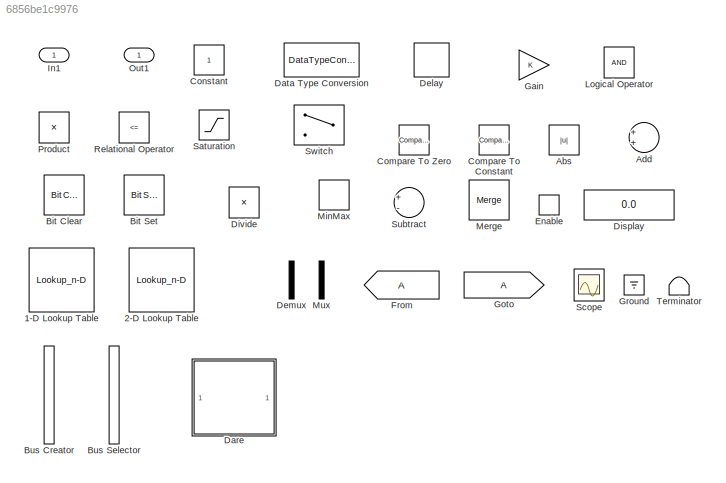
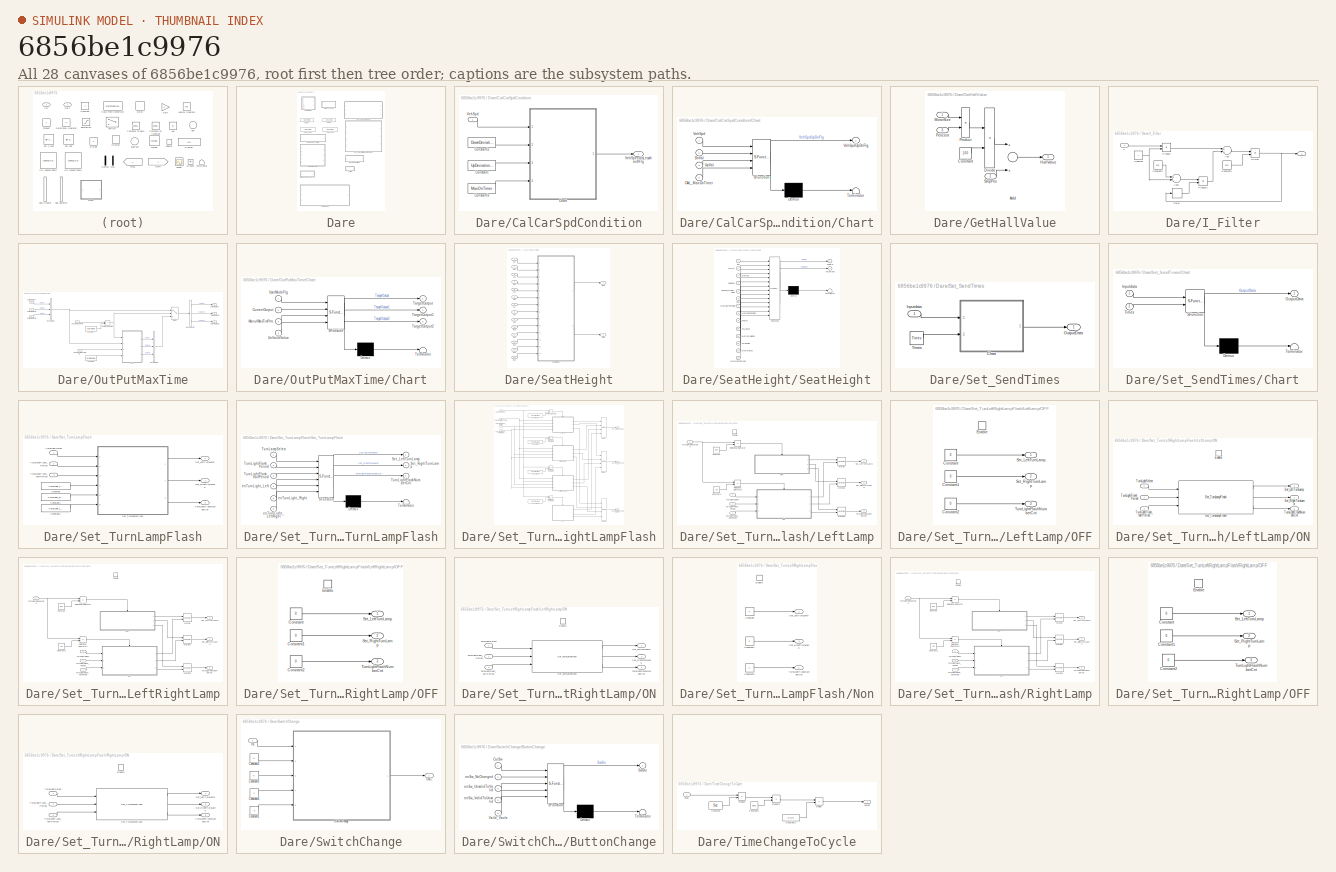
[diagram: thumbnail index - all 28 canvases of the model, root first then tree order]
MODEL slx_6856be1c9976
KIND library
CONFIG AbsTol = auto
CONFIG EnableMultiTasking = off
CONFIG FixedStep = auto
CONFIG MaxStep = auto
CONFIG MinStep = auto
CONFIG RelTol = 1e-3
CONFIG SampleTimeConstraint = Unconstrained
CONFIG Solver = VariableStepAuto
CONFIG SolverName = VariableStepAuto
CONFIG StartTime = 0.0
CONFIG StopTime = 10.0
BLOCK [Lookup_n-D] 1-D Lookup Table
  BreakpointsForDimension1 = [-5:5]
  InternalRulePriority = Speed
  NumberOfTableDimensions = 1
  Ports = [1, 1]
  RndMeth = Simplest
  Table = tanh([-5:5])
BLOCK [Lookup_n-D] 2-D Lookup Table
  BreakpointsForDimension1 = [1:3]
  BreakpointsForDimension2 = [1:3]
  InternalRulePriority = Speed
  Ports = [2, 1]
  RndMeth = Simplest
BLOCK [Abs] Abs
  SaturateOnIntegerOverflow = off
BLOCK [Sum] Add
  InputSameDT = off
  OutDataTypeStr = Inherit: Inherit via internal rule
  Ports = [2, 1]
  SaturateOnIntegerOverflow = off
BLOCK [Reference] Bit Clear  REF=simulink/Logic and Bit
Operations/Bit Clear
  Ports = [1, 1]
  SourceBlock = simulink/Logic and Bit\nOperations/Bit Clear
  SourceProductBaseCode = SL
  SourceProductName = Simulink
  SourceType = Bit Clear
BLOCK [Reference] Bit Set  REF=simulink/Logic and Bit
Operations/Bit Set
  Ports = [1, 1]
  SourceBlock = simulink/Logic and Bit\nOperations/Bit Set
  SourceProductBaseCode = SL
  SourceProductName = Simulink
  SourceType = Bit Set
BLOCK [BusCreator] Bus Creator
  DisplayOption = bar
  InheritFromInputs = on
  Inputs = 2
  Ports = [2, 1]
BLOCK [BusSelector] Bus Selector
  OutputAsBus = off
  OutputSignals = signal1,signal2
  Ports = [1, 2]
BLOCK [Reference] Compare To Constant  REF=simulink/Logic and Bit
Operations/Compare
To Constant
  Ports = [1, 1]
  SourceBlock = simulink/Logic and Bit\nOperations/Compare\nTo Constant
  SourceProductBaseCode = SL
  SourceProductName = Simulink
  SourceType = Compare To Constant
BLOCK [Reference] Compare To Zero  REF=simulink/Logic and Bit
Operations/Compare
To Zero
  Ports = [1, 1]
  SourceBlock = simulink/Logic and Bit\nOperations/Compare\nTo Zero
  SourceProductBaseCode = SL
  SourceProductName = Simulink
  SourceType = Compare To Zero
BLOCK [Constant] Constant
BLOCK [SubSystem] Dare
  Ports = []
  RequestExecContextInheritance = off
BLOCK [SubSystem] Dare/CalCarSpdCondition
  Ports = [1, 1]
  RequestExecContextInheritance = off
BLOCK [Inport] Dare/CalCarSpdCondition/ VehSpd
  IconDisplay = Port number
BLOCK [SubSystem] Dare/CalCarSpdCondition/Chart
  ErrorFcn = Stateflow.Translate.translate
  PermitHierarchicalResolution = ExplicitOnly
  Ports = [4, 1]
  RequestExecContextInheritance = off
  SFBlockType = Chart
  TreatAsAtomicUnit = on
BLOCK [Demux] Dare/CalCarSpdCondition/Chart/ Demux 
  Outputs = 1
  Ports = [1, 1]
BLOCK [S-Function] Dare/CalCarSpdCondition/Chart/ SFunction 
  EnableBusSupport = on
  FunctionName = sf_sfun
  PortCounts = [4 2]
  Ports = [4, 2]
  SFcnIsStateOwnerBlock = off
  SFunctionDeploymentMode = off
  Tag = Stateflow S-Function DareLib 4
BLOCK [Terminator] Dare/CalCarSpdCondition/Chart/ Terminator 
BLOCK [Inport] Dare/CalCarSpdCondition/Chart/CAL_MaxOnTimer
  IconDisplay = Port number
  Port = 4
BLOCK [Inport] Dare/CalCarSpdCondition/Chart/DnVal
  IconDisplay = Port number
  Port = 2
BLOCK [Inport] Dare/CalCarSpdCondition/Chart/UpVal
  IconDisplay = Port number
  Port = 3
BLOCK [Inport] Dare/CalCarSpdCondition/Chart/VehSpd
  IconDisplay = Port number
BLOCK [Outport] Dare/CalCarSpdCondition/Chart/VehSpdUpDnFlg
  IconDisplay = Port number
BLOCK [Constant] Dare/CalCarSpdCondition/Constant
  OutDataTypeStr = uint8
  Value = UpDeviationVal
BLOCK [Constant] Dare/CalCarSpdCondition/Constant2
  OutDataTypeStr = uint8
  Value = DownDeviationVal
BLOCK [Constant] Dare/CalCarSpdCondition/Constant3
  OutDataTypeStr = uint16
  Value = MaxOnTimer
BLOCK [Outport] Dare/CalCarSpdCondition/VehSpeedIsLessthan8Flg
  IconDisplay = Port number
BLOCK [SubSystem] Dare/GetHallValue
  Ports = [3, 1]
  PreDeleteFcn = Stateflow.SLINSF.SimulinkMan.removePreDeleteFcn
  RequestExecContextInheritance = off
  UndoDeleteFcn = Stateflow.SLINSF.SimulinkMan.restorePreDeleteFcn
BLOCK [Sum] Dare/GetHallValue/Add
  AccumDataTypeStr = uint16
  InputSameDT = off
  OutDataTypeStr = Inherit: Inherit via internal rule
  Ports = [2, 1]
  SaturateOnIntegerOverflow = off
BLOCK [Constant] Dare/GetHallValue/Constant
  OutDataTypeStr = uint16
  Value = 100
BLOCK [Product] Dare/GetHallValue/Divide
  InputSameDT = off
  Inputs = */
  OutDataTypeStr = uint16
  Ports = [2, 1]
  RndMeth = Floor
  SaturateOnIntegerOverflow = off
BLOCK [Outport] Dare/GetHallValue/HallValue
  IconDisplay = Port number
  OutDataTypeStr = uint16
BLOCK [Inport] Dare/GetHallValue/MotorSize
  IconDisplay = Port number
  OutDataTypeStr = uint16
BLOCK [Inport] Dare/GetHallValue/Pencent
  IconDisplay = Port number
  OutDataTypeStr = uint8
  Port = 3
BLOCK [Product] Dare/GetHallValue/Product
  InputSameDT = off
  OutDataTypeStr = uint32
  Ports = [2, 1]
  RndMeth = Floor
  SaturateOnIntegerOverflow = off
BLOCK [Inport] Dare/GetHallValue/StopPos
  IconDisplay = Port number
  OutDataTypeStr = uint16
  Port = 2
BLOCK [SubSystem] Dare/I_Filter
  Ports = [1, 1]
  RequestExecContextInheritance = off
BLOCK [Sum] Dare/I_Filter/Add
  InputSameDT = off
  OutDataTypeStr = Inherit: Inherit via internal rule
  Ports = [2, 1]
  SaturateOnIntegerOverflow = off
BLOCK [Sum] Dare/I_Filter/Add1
  InputSameDT = off
  Inputs = +-
  OutDataTypeStr = Inherit: Inherit via internal rule
  Ports = [2, 1]
  SaturateOnIntegerOverflow = off
BLOCK [Constant] Dare/I_Filter/Constant
  OutDataTypeStr = uint8
  Value = f
BLOCK [Constant] Dare/I_Filter/Constant1
  OutDataTypeStr = uint8
  Value = 100
BLOCK [Constant] Dare/I_Filter/Constant2
  OutDataTypeStr = uint8
  Value = 100
BLOCK [Delay] Dare/I_Filter/Delay
  DelayLength = 1
  InitialCondition = 0
  InputPortMap = u0
  Ports = [1, 1]
BLOCK [Product] Dare/I_Filter/Divide
  InputSameDT = off
  Inputs = */
  OutDataTypeStr = Inherit: Inherit via internal rule
  Ports = [2, 1]
  RndMeth = Floor
  SaturateOnIntegerOverflow = off
BLOCK [Product] Dare/I_Filter/Product
  InputSameDT = off
  OutDataTypeStr = Inherit: Inherit via internal rule
  Ports = [2, 1]
  RndMeth = Floor
  SaturateOnIntegerOverflow = off
BLOCK [Product] Dare/I_Filter/Product1
  InputSameDT = off
  OutDataTypeStr = uint32
  Ports = [2, 1]
  RndMeth = Floor
  SaturateOnIntegerOverflow = off
BLOCK [Inport] Dare/I_Filter/x
  IconDisplay = Port number
BLOCK [Outport] Dare/I_Filter/y
  IconDisplay = Port number
BLOCK [SubSystem] Dare/OutPutMaxTime
  AttributesFormatString = %<Description>
  Description = 工厂模式限制输出时间
  Ports = [5, 3]
  RequestExecContextInheritance = off
BLOCK [BusCreator] Dare/OutPutMaxTime/Bus Creator
  DisplayOption = bar
  InheritFromInputs = on
  Inputs = 3
  Ports = [3, 1]
BLOCK [BusCreator] Dare/OutPutMaxTime/Bus Creator1
  DisplayOption = bar
  InheritFromInputs = on
  Inputs = 3
  Ports = [3, 1]
BLOCK [BusSelector] Dare/OutPutMaxTime/Bus Selector
  OutputAsBus = off
  OutputSignals = Output,Output1,Output2
  Ports = [1, 3]
BLOCK [SubSystem] Dare/OutPutMaxTime/Chart
  ErrorFcn = Stateflow.Translate.translate
  PermitHierarchicalResolution = ExplicitOnly
  Ports = [4, 3]
  RequestExecContextInheritance = off
  SFBlockType = Chart
  TreatAsAtomicUnit = on
BLOCK [Demux] Dare/OutPutMaxTime/Chart/ Demux 
  Outputs = 1
  Ports = [1, 1]
BLOCK [S-Function] Dare/OutPutMaxTime/Chart/ SFunction 
  EnableBusSupport = on
  FunctionName = sf_sfun
  PortCounts = [4 4]
  Ports = [4, 4]
  SFcnIsStateOwnerBlock = off
  SFunctionDeploymentMode = off
  Tag = Stateflow S-Function DareLib 2
BLOCK [Terminator] Dare/OutPutMaxTime/Chart/ Terminator 
BLOCK [Inport] Dare/OutPutMaxTime/Chart/CurrentOutput
  IconDisplay = Port number
  Port = 2
BLOCK [Inport] Dare/OutPutMaxTime/Chart/ManufMaxTimPrm
  IconDisplay = Port number
  Port = 3
BLOCK [Outport] Dare/OutPutMaxTime/Chart/TargetOutput
  IconDisplay = Port number
BLOCK [Outport] Dare/OutPutMaxTime/Chart/TargetOutput1
  IconDisplay = Port number
  Port = 2
BLOCK [Outport] Dare/OutPutMaxTime/Chart/TargetOutput2
  IconDisplay = Port number
  Port = 3
BLOCK [Inport] Dare/OutPutMaxTime/Chart/UnVaildValue
  IconDisplay = Port number
  Port = 4
BLOCK [Inport] Dare/OutPutMaxTime/Chart/UserModeFlg
  IconDisplay = Port number
BLOCK [Constant] Dare/OutPutMaxTime/Constant
  OutDataTypeStr = uint8
  Value = UserMode
BLOCK [Constant] Dare/OutPutMaxTime/Constant1
  OutDataTypeStr = uint8
  Value = UnVaildValue
BLOCK [Inport] Dare/OutPutMaxTime/CurrentOutput
  IconDisplay = Port number
  Port = 3
BLOCK [Inport] Dare/OutPutMaxTime/CurrentOutput1
  IconDisplay = Port number
  Port = 4
BLOCK [Inport] Dare/OutPutMaxTime/CurrentOutput2
  IconDisplay = Port number
  Port = 5
BLOCK [RelationalOperator] Dare/OutPutMaxTime/Relational Operator
  InputSameDT = off
  Operator = ==
  OutDataTypeStr = boolean
  Ports = [2, 1]
  RndMeth = Simplest
BLOCK [Switch] Dare/OutPutMaxTime/Switch
  Criteria = u2 ~= 0
  InputSameDT = off
  SaturateOnIntegerOverflow = off
BLOCK [Outport] Dare/OutPutMaxTime/TargetOutput
  IconDisplay = Port number
BLOCK [Outport] Dare/OutPutMaxTime/TargetOutput1
  IconDisplay = Port number
  Port = 2
BLOCK [Outport] Dare/OutPutMaxTime/TargetOutput2
  IconDisplay = Port number
  Port = 3
BLOCK [Inport] Dare/OutPutMaxTime/VehManufMaxTimPrm
  IconDisplay = Port number
  Port = 2
BLOCK [Inport] Dare/OutPutMaxTime/VehOpModePrm
  IconDisplay = Port number
BLOCK [SubSystem] Dare/SeatHeight
  Ports = [14, 2]
  RequestExecContextInheritance = off
BLOCK [Inport] Dare/SeatHeight/In1
  IconDisplay = Port number
BLOCK [Inport] Dare/SeatHeight/In10
  IconDisplay = Port number
  Port = 10
BLOCK [Inport] Dare/SeatHeight/In11
  IconDisplay = Port number
  Port = 11
BLOCK [Inport] Dare/SeatHeight/In12
  IconDisplay = Port number
  Port = 12
BLOCK [Inport] Dare/SeatHeight/In13
  IconDisplay = Port number
  Port = 13
BLOCK [Inport] Dare/SeatHeight/In14
  IconDisplay = Port number
  Port = 14
BLOCK [Inport] Dare/SeatHeight/In2
  IconDisplay = Port number
  Port = 2
BLOCK [Inport] Dare/SeatHeight/In3
  IconDisplay = Port number
  Port = 3
BLOCK [Inport] Dare/SeatHeight/In4
  IconDisplay = Port number
  Port = 4
BLOCK [Inport] Dare/SeatHeight/In5
  IconDisplay = Port number
  Port = 5
BLOCK [Inport] Dare/SeatHeight/In6
  IconDisplay = Port number
  Port = 6
BLOCK [Inport] Dare/SeatHeight/In7
  IconDisplay = Port number
  Port = 7
BLOCK [Inport] Dare/SeatHeight/In8
  IconDisplay = Port number
  Port = 8
BLOCK [Inport] Dare/SeatHeight/In9
  IconDisplay = Port number
  Port = 9
BLOCK [Outport] Dare/SeatHeight/Out1
  IconDisplay = Port number
BLOCK [Outport] Dare/SeatHeight/Out2
  IconDisplay = Port number
  Port = 2
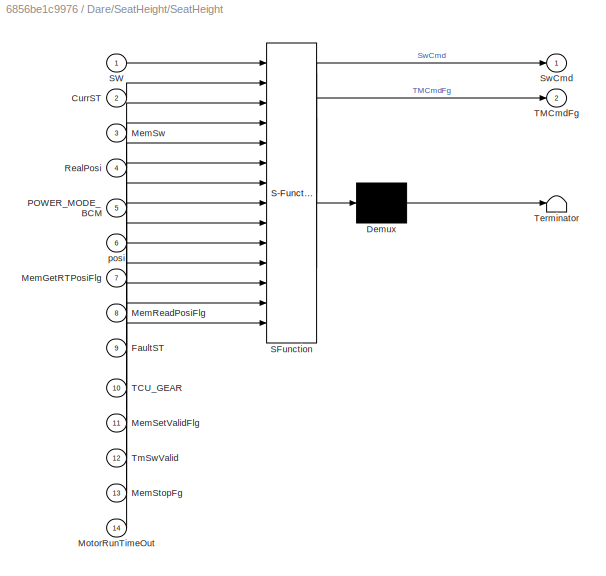
BLOCK [SubSystem] Dare/SeatHeight/SeatHeight
  ErrorFcn = Stateflow.Translate.translate
  PermitHierarchicalResolution = ExplicitOnly
  Ports = [14, 2]
  RequestExecContextInheritance = off
  SFBlockType = Chart
  TreatAsAtomicUnit = on
BLOCK [Demux] Dare/SeatHeight/SeatHeight/ Demux 
  Outputs = 1
  Ports = [1, 1]
BLOCK [S-Function] Dare/SeatHeight/SeatHeight/ SFunction 
  EnableBusSupport = off
  FunctionName = sf_sfun
  PortCounts = [14 3]
  Ports = [14, 3]
  SFcnIsStateOwnerBlock = off
  SFunctionDeploymentMode = off
  Tag = Stateflow S-Function DareLib 14
BLOCK [Terminator] Dare/SeatHeight/SeatHeight/ Terminator 
BLOCK [Inport] Dare/SeatHeight/SeatHeight/CurrST
  IconDisplay = Port number
  Port = 2
BLOCK [Inport] Dare/SeatHeight/SeatHeight/FaultST
  IconDisplay = Port number
  Port = 9
BLOCK [Inport] Dare/SeatHeight/SeatHeight/MemGetRTPosiFlg
  IconDisplay = Port number
  Port = 7
BLOCK [Inport] Dare/SeatHeight/SeatHeight/MemReadPosiFlg
  IconDisplay = Port number
  Port = 8
BLOCK [Inport] Dare/SeatHeight/SeatHeight/MemSetValidFlg
  IconDisplay = Port number
  Port = 11
BLOCK [Inport] Dare/SeatHeight/SeatHeight/MemStopFg
  IconDisplay = Port number
  Port = 13
BLOCK [Inport] Dare/SeatHeight/SeatHeight/MemSw
  IconDisplay = Port number
  Port = 3
BLOCK [Inport] Dare/SeatHeight/SeatHeight/MotorRunTimeOut
  IconDisplay = Port number
  Port = 14
BLOCK [Inport] Dare/SeatHeight/SeatHeight/POWER_MODE_BCM
  IconDisplay = Port number
  Port = 5
BLOCK [Inport] Dare/SeatHeight/SeatHeight/RealPosi
  IconDisplay = Port number
  Port = 4
BLOCK [Inport] Dare/SeatHeight/SeatHeight/SW
  IconDisplay = Port number
BLOCK [Outport] Dare/SeatHeight/SeatHeight/SwCmd
  IconDisplay = Port number
BLOCK [Inport] Dare/SeatHeight/SeatHeight/TCU_GEAR
  IconDisplay = Port number
  Port = 10
BLOCK [Outport] Dare/SeatHeight/SeatHeight/TMCmdFg
  IconDisplay = Port number
  Port = 2
BLOCK [Inport] Dare/SeatHeight/SeatHeight/TmSwValid
  IconDisplay = Port number
  Port = 12
BLOCK [Inport] Dare/SeatHeight/SeatHeight/posi
  IconDisplay = Port number
  Port = 6
BLOCK [SubSystem] Dare/Set_SendTimes
  Ports = [1, 1]
  RequestExecContextInheritance = off
BLOCK [SubSystem] Dare/Set_SendTimes/Chart
  ErrorFcn = Stateflow.Translate.translate
  PermitHierarchicalResolution = ExplicitOnly
  Ports = [2, 1]
  RequestExecContextInheritance = off
  SFBlockType = Chart
  TreatAsAtomicUnit = on
BLOCK [Demux] Dare/Set_SendTimes/Chart/ Demux 
  Outputs = 1
  Ports = [1, 1]
BLOCK [S-Function] Dare/Set_SendTimes/Chart/ SFunction 
  EnableBusSupport = on
  FunctionName = sf_sfun
  PortCounts = [2 2]
  Ports = [2, 2]
  SFcnIsStateOwnerBlock = off
  SFunctionDeploymentMode = off
  Tag = Stateflow S-Function DareLib 5
BLOCK [Terminator] Dare/Set_SendTimes/Chart/ Terminator 
BLOCK [Inport] Dare/Set_SendTimes/Chart/Inputdata
  IconDisplay = Port number
BLOCK [Outport] Dare/Set_SendTimes/Chart/OutputData
  IconDisplay = Port number
BLOCK [Inport] Dare/Set_SendTimes/Chart/Times
  IconDisplay = Port number
  Port = 2
BLOCK [Inport] Dare/Set_SendTimes/Inputdata
  IconDisplay = Port number
BLOCK [Outport] Dare/Set_SendTimes/OutputData
  IconDisplay = Port number
BLOCK [Constant] Dare/Set_SendTimes/Times
  OutDataTypeStr = uint8
  Value = Times
BLOCK [SubSystem] Dare/Set_TurnLampFlash
  Ports = [3, 3]
  RequestExecContextInheritance = off
BLOCK [Constant] Dare/Set_TurnLampFlash/Constant
  OutDataTypeStr = uint8
  Value = TurnLight_Left
BLOCK [Constant] Dare/Set_TurnLampFlash/Constant1
  OutDataTypeStr = uint8
  Value = TurnLight_Right
BLOCK [Constant] Dare/Set_TurnLampFlash/Constant2
  OutDataTypeStr = uint8
  Value = TurnLight_LeftRight
BLOCK [Outport] Dare/Set_TurnLampFlash/Set_LeftTurnLamp
  IconDisplay = Port number
BLOCK [Outport] Dare/Set_TurnLampFlash/Set_RightTurnLamp
  IconDisplay = Port number
  Port = 2
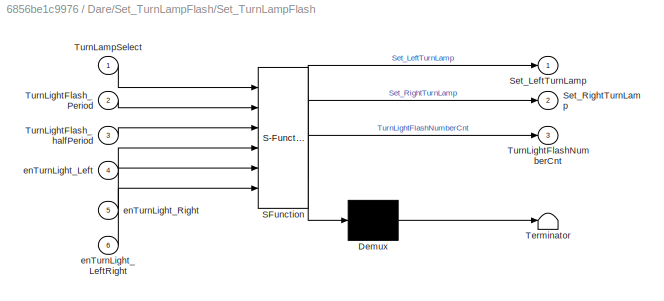
BLOCK [SubSystem] Dare/Set_TurnLampFlash/Set_TurnLampFlash
  ErrorFcn = Stateflow.Translate.translate
  PermitHierarchicalResolution = ExplicitOnly
  Ports = [6, 3]
  RequestExecContextInheritance = off
  SFBlockType = Chart
  TreatAsAtomicUnit = on
BLOCK [Demux] Dare/Set_TurnLampFlash/Set_TurnLampFlash/ Demux 
  Outputs = 1
  Ports = [1, 1]
BLOCK [S-Function] Dare/Set_TurnLampFlash/Set_TurnLampFlash/ SFunction 
  EnableBusSupport = on
  FunctionName = sf_sfun
  Parameters = OFF,ON
  PortCounts = [6 4]
  Ports = [6, 4]
  SFcnIsStateOwnerBlock = off
  SFunctionDeploymentMode = off
  Tag = Stateflow S-Function DareLib 1
BLOCK [Terminator] Dare/Set_TurnLampFlash/Set_TurnLampFlash/ Terminator 
BLOCK [Outport] Dare/Set_TurnLampFlash/Set_TurnLampFlash/Set_LeftTurnLamp
  IconDisplay = Port number
BLOCK [Outport] Dare/Set_TurnLampFlash/Set_TurnLampFlash/Set_RightTurnLamp
  IconDisplay = Port number
  Port = 2
BLOCK [Inport] Dare/Set_TurnLampFlash/Set_TurnLampFlash/TurnLampSelect
  IconDisplay = Port number
BLOCK [Outport] Dare/Set_TurnLampFlash/Set_TurnLampFlash/TurnLightFlashNumberCnt
  IconDisplay = Port number
  Port = 3
BLOCK [Inport] Dare/Set_TurnLampFlash/Set_TurnLampFlash/TurnLightFlash_Period
  IconDisplay = Port number
  Port = 2
BLOCK [Inport] Dare/Set_TurnLampFlash/Set_TurnLampFlash/TurnLightFlash_halfPeriod
  IconDisplay = Port number
  Port = 3
BLOCK [Inport] Dare/Set_TurnLampFlash/Set_TurnLampFlash/enTurnLight_Left
  IconDisplay = Port number
  Port = 4
BLOCK [Inport] Dare/Set_TurnLampFlash/Set_TurnLampFlash/enTurnLight_LeftRight
  IconDisplay = Port number
  Port = 6
BLOCK [Inport] Dare/Set_TurnLampFlash/Set_TurnLampFlash/enTurnLight_Right
  IconDisplay = Port number
  Port = 5
BLOCK [Outport] Dare/Set_TurnLampFlash/TurnLightFlashNumberCnt
  IconDisplay = Port number
  Port = 3
BLOCK [Inport] Dare/Set_TurnLampFlash/TurnLightFlash_Period
  IconDisplay = Port number
  Port = 2
BLOCK [Inport] Dare/Set_TurnLampFlash/TurnLightFlash_halfPeriod
  IconDisplay = Port number
  Port = 3
BLOCK [Inport] Dare/Set_TurnLampFlash/TurnLightSelect
  IconDisplay = Port number
BLOCK [SubSystem] Dare/Set_TurnLeftRightLampFlash
  Ports = [4, 3]
  RequestExecContextInheritance = off
BLOCK [Constant] Dare/Set_TurnLeftRightLampFlash/Constant1
  OutDataTypeStr = uint8
  Value = enTurnLight_Right
BLOCK [Constant] Dare/Set_TurnLeftRightLampFlash/Constant14
  OutDataTypeStr = uint8
  Value = enTurnLight_Left
BLOCK [Constant] Dare/Set_TurnLeftRightLampFlash/Constant2
  OutDataTypeStr = uint8
  Value = enTurnLight_LeftRight
BLOCK [Constant] Dare/Set_TurnLeftRightLampFlash/Constant3
  OutDataTypeStr = uint8
  Value = enTurnLight_Non
BLOCK [SubSystem] Dare/Set_TurnLeftRightLampFlash/LeftLamp
  Ports = [4, 3, 1]
  RequestExecContextInheritance = off
  TreatAsAtomicUnit = on
BLOCK [Constant] Dare/Set_TurnLeftRightLampFlash/LeftLamp/Constant
  OutDataTypeStr = uint8
  Value = OFF
BLOCK [Constant] Dare/Set_TurnLeftRightLampFlash/LeftLamp/Constant1
  OutDataTypeStr = uint8
  Value = ON
BLOCK [EnablePort] Dare/Set_TurnLeftRightLampFlash/LeftLamp/Enable
  Ports = []
BLOCK [Merge] Dare/Set_TurnLeftRightLampFlash/LeftLamp/Merge
  Ports = [2, 1]
BLOCK [Merge] Dare/Set_TurnLeftRightLampFlash/LeftLamp/Merge1
  Ports = [2, 1]
BLOCK [Merge] Dare/Set_TurnLeftRightLampFlash/LeftLamp/Merge2
  Ports = [2, 1]
BLOCK [SubSystem] Dare/Set_TurnLeftRightLampFlash/LeftLamp/OFF
  Ports = [0, 3, 1]
  RequestExecContextInheritance = off
  TreatAsAtomicUnit = on
BLOCK [Constant] Dare/Set_TurnLeftRightLampFlash/LeftLamp/OFF/Constant
  OutDataTypeStr = uint8
  Value = 0
BLOCK [Constant] Dare/Set_TurnLeftRightLampFlash/LeftLamp/OFF/Constant1
  OutDataTypeStr = uint8
  Value = 0
BLOCK [Constant] Dare/Set_TurnLeftRightLampFlash/LeftLamp/OFF/Constant2
  OutDataTypeStr = uint16
  Value = 0
BLOCK [EnablePort] Dare/Set_TurnLeftRightLampFlash/LeftLamp/OFF/Enable
  Ports = []
BLOCK [Outport] Dare/Set_TurnLeftRightLampFlash/LeftLamp/OFF/Set_LeftTurnLamp
  IconDisplay = Port number
BLOCK [Outport] Dare/Set_TurnLeftRightLampFlash/LeftLamp/OFF/Set_RightTurnLamp
  IconDisplay = Port number
  Port = 2
BLOCK [Outport] Dare/Set_TurnLeftRightLampFlash/LeftLamp/OFF/TurnLightFlashNumberCnt
  IconDisplay = Port number
  Port = 3
BLOCK [SubSystem] Dare/Set_TurnLeftRightLampFlash/LeftLamp/ON
  Ports = [3, 3, 1]
  RequestExecContextInheritance = off
  TreatAsAtomicUnit = on
BLOCK [EnablePort] Dare/Set_TurnLeftRightLampFlash/LeftLamp/ON/Enable
  AttributesFormatString = %<StatesWhenEnabling>
  Ports = []
  StatesWhenEnabling = reset
BLOCK [Outport] Dare/Set_TurnLeftRightLampFlash/LeftLamp/ON/Set_LeftTurnLamp
  IconDisplay = Port number
BLOCK [Outport] Dare/Set_TurnLeftRightLampFlash/LeftLamp/ON/Set_RightTurnLamp
  IconDisplay = Port number
  Port = 2
BLOCK [Reference] Dare/Set_TurnLeftRightLampFlash/LeftLamp/ON/Set_TurnLampFlash  REF=$bdroot/Dare/Set_TurnLampFlash
  Ports = [3, 3]
  SourceBlock = $bdroot/Dare/Set_TurnLampFlash
  SourceType = 控制转向灯闪烁及频率设定
BLOCK [Outport] Dare/Set_TurnLeftRightLampFlash/LeftLamp/ON/TurnLightFlashNumberCnt
  IconDisplay = Port number
  Port = 3
BLOCK [Inport] Dare/Set_TurnLeftRightLampFlash/LeftLamp/ON/TurnLightFlash_Period
  IconDisplay = Port number
  Port = 2
BLOCK [Inport] Dare/Set_TurnLeftRightLampFlash/LeftLamp/ON/TurnLightFlash_halfPeriod
  IconDisplay = Port number
  Port = 3
BLOCK [Inport] Dare/Set_TurnLeftRightLampFlash/LeftLamp/ON/TurnLightSelect
  IconDisplay = Port number
BLOCK [RelationalOperator] Dare/Set_TurnLeftRightLampFlash/LeftLamp/Relational Operator
  InputSameDT = off
  Operator = ==
  OutDataTypeStr = boolean
  Ports = [2, 1]
  RndMeth = Simplest
BLOCK [RelationalOperator] Dare/Set_TurnLeftRightLampFlash/LeftLamp/Relational Operator1
  InputSameDT = off
  Operator = ==
  OutDataTypeStr = boolean
  Ports = [2, 1]
  RndMeth = Simplest
BLOCK [Outport] Dare/Set_TurnLeftRightLampFlash/LeftLamp/Set_LeftTurnLamp
  IconDisplay = Port number
BLOCK [Outport] Dare/Set_TurnLeftRightLampFlash/LeftLamp/Set_RightTurnLamp
  IconDisplay = Port number
  Port = 2
BLOCK [Inport] Dare/Set_TurnLeftRightLampFlash/LeftLamp/TurnLightFlashMode
  IconDisplay = Port number
BLOCK [Outport] Dare/Set_TurnLeftRightLampFlash/LeftLamp/TurnLightFlashNumberCnt
  IconDisplay = Port number
  Port = 3
BLOCK [Inport] Dare/Set_TurnLeftRightLampFlash/LeftLamp/TurnLightFlash_Period
  IconDisplay = Port number
  Port = 3
BLOCK [Inport] Dare/Set_TurnLeftRightLampFlash/LeftLamp/TurnLightFlash_halfPeriod
  IconDisplay = Port number
  Port = 4
BLOCK [Inport] Dare/Set_TurnLeftRightLampFlash/LeftLamp/TurnLightSelect
  IconDisplay = Port number
  Port = 2
BLOCK [SubSystem] Dare/Set_TurnLeftRightLampFlash/LeftRightLamp
  Ports = [4, 3, 1]
  RequestExecContextInheritance = off
  TreatAsAtomicUnit = on
BLOCK [Constant] Dare/Set_TurnLeftRightLampFlash/LeftRightLamp/Constant
  Value = OFF
BLOCK [Constant] Dare/Set_TurnLeftRightLampFlash/LeftRightLamp/Constant1
  Value = ON
BLOCK [EnablePort] Dare/Set_TurnLeftRightLampFlash/LeftRightLamp/Enable
  Ports = []
BLOCK [Merge] Dare/Set_TurnLeftRightLampFlash/LeftRightLamp/Merge
  Ports = [2, 1]
BLOCK [Merge] Dare/Set_TurnLeftRightLampFlash/LeftRightLamp/Merge1
  Ports = [2, 1]
BLOCK [Merge] Dare/Set_TurnLeftRightLampFlash/LeftRightLamp/Merge2
  Ports = [2, 1]
BLOCK [SubSystem] Dare/Set_TurnLeftRightLampFlash/LeftRightLamp/OFF
  Ports = [0, 3, 1]
  RequestExecContextInheritance = off
  TreatAsAtomicUnit = on
BLOCK [Constant] Dare/Set_TurnLeftRightLampFlash/LeftRightLamp/OFF/Constant
  OutDataTypeStr = uint8
  Value = 0
BLOCK [Constant] Dare/Set_TurnLeftRightLampFlash/LeftRightLamp/OFF/Constant1
  OutDataTypeStr = uint8
  Value = 0
BLOCK [Constant] Dare/Set_TurnLeftRightLampFlash/LeftRightLamp/OFF/Constant2
  OutDataTypeStr = uint16
  Value = 0
BLOCK [EnablePort] Dare/Set_TurnLeftRightLampFlash/LeftRightLamp/OFF/Enable
  Ports = []
BLOCK [Outport] Dare/Set_TurnLeftRightLampFlash/LeftRightLamp/OFF/Set_LeftTurnLamp
  IconDisplay = Port number
BLOCK [Outport] Dare/Set_TurnLeftRightLampFlash/LeftRightLamp/OFF/Set_RightTurnLamp
  IconDisplay = Port number
  Port = 2
BLOCK [Outport] Dare/Set_TurnLeftRightLampFlash/LeftRightLamp/OFF/TurnLightFlashNumberCnt
  IconDisplay = Port number
  Port = 3
BLOCK [SubSystem] Dare/Set_TurnLeftRightLampFlash/LeftRightLamp/ON
  Ports = [3, 3, 1]
  RequestExecContextInheritance = off
  TreatAsAtomicUnit = on
BLOCK [EnablePort] Dare/Set_TurnLeftRightLampFlash/LeftRightLamp/ON/Enable
  AttributesFormatString = %<StatesWhenEnabling>
  Ports = []
  StatesWhenEnabling = reset
BLOCK [Outport] Dare/Set_TurnLeftRightLampFlash/LeftRightLamp/ON/Set_LeftTurnLamp
  IconDisplay = Port number
BLOCK [Outport] Dare/Set_TurnLeftRightLampFlash/LeftRightLamp/ON/Set_RightTurnLamp
  IconDisplay = Port number
  Port = 2
BLOCK [Reference] Dare/Set_TurnLeftRightLampFlash/LeftRightLamp/ON/Set_TurnLampFlash  REF=$bdroot/Dare/Set_TurnLampFlash
  Ports = [3, 3]
  SourceBlock = $bdroot/Dare/Set_TurnLampFlash
  SourceType = 控制转向灯闪烁及频率设定
BLOCK [Outport] Dare/Set_TurnLeftRightLampFlash/LeftRightLamp/ON/TurnLightFlashNumberCnt
  IconDisplay = Port number
  Port = 3
BLOCK [Inport] Dare/Set_TurnLeftRightLampFlash/LeftRightLamp/ON/TurnLightFlash_Period
  IconDisplay = Port number
  Port = 2
BLOCK [Inport] Dare/Set_TurnLeftRightLampFlash/LeftRightLamp/ON/TurnLightFlash_halfPeriod
  IconDisplay = Port number
  Port = 3
BLOCK [Inport] Dare/Set_TurnLeftRightLampFlash/LeftRightLamp/ON/TurnLightSelect
  IconDisplay = Port number
BLOCK [RelationalOperator] Dare/Set_TurnLeftRightLampFlash/LeftRightLamp/Relational Operator
  InputSameDT = off
  Operator = ==
  OutDataTypeStr = boolean
  Ports = [2, 1]
  RndMeth = Simplest
BLOCK [RelationalOperator] Dare/Set_TurnLeftRightLampFlash/LeftRightLamp/Relational Operator1
  InputSameDT = off
  Operator = ==
  OutDataTypeStr = boolean
  Ports = [2, 1]
  RndMeth = Simplest
BLOCK [Outport] Dare/Set_TurnLeftRightLampFlash/LeftRightLamp/Set_LeftTurnLamp
  IconDisplay = Port number
BLOCK [Outport] Dare/Set_TurnLeftRightLampFlash/LeftRightLamp/Set_RightTurnLamp
  IconDisplay = Port number
  Port = 2
BLOCK [Inport] Dare/Set_TurnLeftRightLampFlash/LeftRightLamp/TurnLightFlashMode
  IconDisplay = Port number
BLOCK [Outport] Dare/Set_TurnLeftRightLampFlash/LeftRightLamp/TurnLightFlashNumberCnt
  IconDisplay = Port number
  Port = 3
BLOCK [Inport] Dare/Set_TurnLeftRightLampFlash/LeftRightLamp/TurnLightFlash_Period
  IconDisplay = Port number
  Port = 3
BLOCK [Inport] Dare/Set_TurnLeftRightLampFlash/LeftRightLamp/TurnLightFlash_halfPeriod
  IconDisplay = Port number
  Port = 4
BLOCK [Inport] Dare/Set_TurnLeftRightLampFlash/LeftRightLamp/TurnLightSelect
  IconDisplay = Port number
  Port = 2
BLOCK [Merge] Dare/Set_TurnLeftRightLampFlash/Merge
  Inputs = 4
  Ports = [4, 1]
BLOCK [Merge] Dare/Set_TurnLeftRightLampFlash/Merge1
  Inputs = 4
  Ports = [4, 1]
BLOCK [Merge] Dare/Set_TurnLeftRightLampFlash/Merge2
  Inputs = 4
  Ports = [4, 1]
BLOCK [SubSystem] Dare/Set_TurnLeftRightLampFlash/Non
  Ports = [0, 3, 1]
  RequestExecContextInheritance = off
  TreatAsAtomicUnit = on
BLOCK [Constant] Dare/Set_TurnLeftRightLampFlash/Non/Constant
  OutDataTypeStr = uint8
  Value = 0
BLOCK [Constant] Dare/Set_TurnLeftRightLampFlash/Non/Constant1
  OutDataTypeStr = uint8
  Value = 0
BLOCK [Constant] Dare/Set_TurnLeftRightLampFlash/Non/Constant2
  OutDataTypeStr = uint16
  Value = 0
BLOCK [EnablePort] Dare/Set_TurnLeftRightLampFlash/Non/Enable
  Ports = []
BLOCK [Outport] Dare/Set_TurnLeftRightLampFlash/Non/Set_LeftTurnLamp
  IconDisplay = Port number
BLOCK [Outport] Dare/Set_TurnLeftRightLampFlash/Non/Set_RightTurnLamp
  IconDisplay = Port number
  Port = 2
BLOCK [Outport] Dare/Set_TurnLeftRightLampFlash/Non/TurnLightFlashNumberCnt
  IconDisplay = Port number
  Port = 3
BLOCK [RelationalOperator] Dare/Set_TurnLeftRightLampFlash/Relational Operator
  InputSameDT = off
  Operator = ==
  OutDataTypeStr = boolean
  Ports = [2, 1]
  RndMeth = Simplest
BLOCK [RelationalOperator] Dare/Set_TurnLeftRightLampFlash/Relational Operator1
  InputSameDT = off
  Operator = ==
  OutDataTypeStr = boolean
  Ports = [2, 1]
  RndMeth = Simplest
BLOCK [RelationalOperator] Dare/Set_TurnLeftRightLampFlash/Relational Operator2
  InputSameDT = off
  Operator = ==
  OutDataTypeStr = boolean
  Ports = [2, 1]
  RndMeth = Simplest
BLOCK [RelationalOperator] Dare/Set_TurnLeftRightLampFlash/Relational Operator3
  InputSameDT = off
  Operator = ==
  OutDataTypeStr = boolean
  Ports = [2, 1]
  RndMeth = Simplest
BLOCK [SubSystem] Dare/Set_TurnLeftRightLampFlash/RightLamp
  Ports = [4, 3, 1]
  RequestExecContextInheritance = off
  TreatAsAtomicUnit = on
BLOCK [Constant] Dare/Set_TurnLeftRightLampFlash/RightLamp/Constant
  Value = OFF
BLOCK [Constant] Dare/Set_TurnLeftRightLampFlash/RightLamp/Constant1
  Value = ON
BLOCK [EnablePort] Dare/Set_TurnLeftRightLampFlash/RightLamp/Enable
  Ports = []
BLOCK [Merge] Dare/Set_TurnLeftRightLampFlash/RightLamp/Merge
  Ports = [2, 1]
BLOCK [Merge] Dare/Set_TurnLeftRightLampFlash/RightLamp/Merge1
  Ports = [2, 1]
BLOCK [Merge] Dare/Set_TurnLeftRightLampFlash/RightLamp/Merge2
  Ports = [2, 1]
BLOCK [SubSystem] Dare/Set_TurnLeftRightLampFlash/RightLamp/OFF
  Ports = [0, 3, 1]
  RequestExecContextInheritance = off
  TreatAsAtomicUnit = on
BLOCK [Constant] Dare/Set_TurnLeftRightLampFlash/RightLamp/OFF/Constant
  OutDataTypeStr = uint8
  Value = 0
BLOCK [Constant] Dare/Set_TurnLeftRightLampFlash/RightLamp/OFF/Constant1
  OutDataTypeStr = uint8
  Value = 0
BLOCK [Constant] Dare/Set_TurnLeftRightLampFlash/RightLamp/OFF/Constant2
  OutDataTypeStr = uint16
  Value = 0
BLOCK [EnablePort] Dare/Set_TurnLeftRightLampFlash/RightLamp/OFF/Enable
  Ports = []
BLOCK [Outport] Dare/Set_TurnLeftRightLampFlash/RightLamp/OFF/Set_LeftTurnLamp
  IconDisplay = Port number
BLOCK [Outport] Dare/Set_TurnLeftRightLampFlash/RightLamp/OFF/Set_RightTurnLamp
  IconDisplay = Port number
  Port = 2
BLOCK [Outport] Dare/Set_TurnLeftRightLampFlash/RightLamp/OFF/TurnLightFlashNumberCnt
  IconDisplay = Port number
  Port = 3
BLOCK [SubSystem] Dare/Set_TurnLeftRightLampFlash/RightLamp/ON
  Ports = [3, 3, 1]
  RequestExecContextInheritance = off
  TreatAsAtomicUnit = on
BLOCK [EnablePort] Dare/Set_TurnLeftRightLampFlash/RightLamp/ON/Enable
  AttributesFormatString = %<StatesWhenEnabling>
  Ports = []
  StatesWhenEnabling = reset
BLOCK [Outport] Dare/Set_TurnLeftRightLampFlash/RightLamp/ON/Set_LeftTurnLamp
  IconDisplay = Port number
BLOCK [Outport] Dare/Set_TurnLeftRightLampFlash/RightLamp/ON/Set_RightTurnLamp
  IconDisplay = Port number
  Port = 2
BLOCK [Reference] Dare/Set_TurnLeftRightLampFlash/RightLamp/ON/Set_TurnLampFlash  REF=$bdroot/Dare/Set_TurnLampFlash
  Ports = [3, 3]
  SourceBlock = $bdroot/Dare/Set_TurnLampFlash
  SourceType = 控制转向灯闪烁及频率设定
BLOCK [Outport] Dare/Set_TurnLeftRightLampFlash/RightLamp/ON/TurnLightFlashNumberCnt
  IconDisplay = Port number
  Port = 3
BLOCK [Inport] Dare/Set_TurnLeftRightLampFlash/RightLamp/ON/TurnLightFlash_Period
  IconDisplay = Port number
  Port = 2
BLOCK [Inport] Dare/Set_TurnLeftRightLampFlash/RightLamp/ON/TurnLightFlash_halfPeriod
  IconDisplay = Port number
  Port = 3
BLOCK [Inport] Dare/Set_TurnLeftRightLampFlash/RightLamp/ON/TurnLightSelect
  IconDisplay = Port number
BLOCK [RelationalOperator] Dare/Set_TurnLeftRightLampFlash/RightLamp/Relational Operator
  InputSameDT = off
  Operator = ==
  OutDataTypeStr = boolean
  Ports = [2, 1]
  RndMeth = Simplest
BLOCK [RelationalOperator] Dare/Set_TurnLeftRightLampFlash/RightLamp/Relational Operator1
  InputSameDT = off
  Operator = ==
  OutDataTypeStr = boolean
  Ports = [2, 1]
  RndMeth = Simplest
BLOCK [Outport] Dare/Set_TurnLeftRightLampFlash/RightLamp/Set_LeftTurnLamp
  IconDisplay = Port number
BLOCK [Outport] Dare/Set_TurnLeftRightLampFlash/RightLamp/Set_RightTurnLamp
  IconDisplay = Port number
  Port = 2
BLOCK [Inport] Dare/Set_TurnLeftRightLampFlash/RightLamp/TurnLightFlashMode
  IconDisplay = Port number
BLOCK [Outport] Dare/Set_TurnLeftRightLampFlash/RightLamp/TurnLightFlashNumberCnt
  IconDisplay = Port number
  Port = 3
BLOCK [Inport] Dare/Set_TurnLeftRightLampFlash/RightLamp/TurnLightFlash_Period
  IconDisplay = Port number
  Port = 3
BLOCK [Inport] Dare/Set_TurnLeftRightLampFlash/RightLamp/TurnLightFlash_halfPeriod
  IconDisplay = Port number
  Port = 4
BLOCK [Inport] Dare/Set_TurnLeftRightLampFlash/RightLamp/TurnLightSelect
  IconDisplay = Port number
  Port = 2
BLOCK [Outport] Dare/Set_TurnLeftRightLampFlash/Set_LeftTurnLamp
  IconDisplay = Port number
BLOCK [Outport] Dare/Set_TurnLeftRightLampFlash/Set_RightTurnLamp
  IconDisplay = Port number
  Port = 2
BLOCK [Inport] Dare/Set_TurnLeftRightLampFlash/TurnLightFlashMode
  IconDisplay = Port number
  Port = 2
BLOCK [Outport] Dare/Set_TurnLeftRightLampFlash/TurnLightFlashNumberCnt
  IconDisplay = Port number
  Port = 3
BLOCK [Inport] Dare/Set_TurnLeftRightLampFlash/TurnLightFlash_Period
  IconDisplay = Port number
  Port = 3
BLOCK [Inport] Dare/Set_TurnLeftRightLampFlash/TurnLightFlash_halfPeriod
  IconDisplay = Port number
  Port = 4
BLOCK [Inport] Dare/Set_TurnLeftRightLampFlash/TurnLightSelect
  IconDisplay = Port number
BLOCK [SubSystem] Dare/SwitchChange
  Ports = [1, 1]
  RequestExecContextInheritance = off
BLOCK [SubSystem] Dare/SwitchChange/ButtonChange
  ErrorFcn = Stateflow.Translate.translate
  PermitHierarchicalResolution = ExplicitOnly
  Ports = [5, 1]
  RequestExecContextInheritance = off
  SFBlockType = Chart
  TreatAsAtomicUnit = on
BLOCK [Demux] Dare/SwitchChange/ButtonChange/ Demux 
  Outputs = 1
  Ports = [1, 1]
BLOCK [S-Function] Dare/SwitchChange/ButtonChange/ SFunction 
  EnableBusSupport = on
  FunctionName = sf_sfun
  PortCounts = [5 2]
  Ports = [5, 2]
  SFcnIsStateOwnerBlock = off
  SFunctionDeploymentMode = off
  Tag = Stateflow S-Function DareLib 3
BLOCK [Terminator] Dare/SwitchChange/ButtonChange/ Terminator 
BLOCK [Inport] Dare/SwitchChange/ButtonChange/CurSw
  IconDisplay = Port number
BLOCK [Outport] Dare/SwitchChange/ButtonChange/SwSts
  IconDisplay = Port number
BLOCK [Inport] Dare/SwitchChange/ButtonChange/Vaild_Vaule
  IconDisplay = Port number
  Port = 5
BLOCK [Inport] Dare/SwitchChange/ButtonChange/enSw_NoChanged
  IconDisplay = Port number
  Port = 2
BLOCK [Inport] Dare/SwitchChange/ButtonChange/enSw_UnvalidToValid
  IconDisplay = Port number
  Port = 3
BLOCK [Inport] Dare/SwitchChange/ButtonChange/enSw_ValidToUnvalid
  IconDisplay = Port number
  Port = 4
BLOCK [Constant] Dare/SwitchChange/Constant1
  OutDataTypeStr = uint8
  Value = d
BLOCK [Constant] Dare/SwitchChange/Constant2
  OutDataTypeStr = uint8
  Value = a
BLOCK [Constant] Dare/SwitchChange/Constant3
  OutDataTypeStr = uint8
  Value = b
BLOCK [Constant] Dare/SwitchChange/Constant4
  OutDataTypeStr = uint8
  Value = c
BLOCK [Inport] Dare/SwitchChange/In1
  IconDisplay = Port number
BLOCK [Outport] Dare/SwitchChange/Out1
  IconDisplay = Port number
BLOCK [SubSystem] Dare/TimeChangeToCycle
  AttributesFormatString = %<Description>
  Description = 时间转成执行周期
  Ports = [1, 1]
  RequestExecContextInheritance = off
BLOCK [Constant] Dare/TimeChangeToCycle/Constant
  OutDataTypeStr = uint16
  Value = Sec
BLOCK [Constant] Dare/TimeChangeToCycle/Constant1
  OutDataTypeStr = uint16
  Value = Msec
BLOCK [Constant] Dare/TimeChangeToCycle/Constant2
  OutDataTypeStr = uint8
  Value = Cycle
BLOCK [Product] Dare/TimeChangeToCycle/Divide
  InputSameDT = off
  Inputs = */
  OutDataTypeStr = uint32
  Ports = [2, 1]
  RndMeth = Floor
  SaturateOnIntegerOverflow = off
BLOCK [Product] Dare/TimeChangeToCycle/Product
  InputSameDT = off
  OutDataTypeStr = Inherit: Inherit via internal rule
  Ports = [2, 1]
  RndMeth = Floor
  SaturateOnIntegerOverflow = off
BLOCK [Product] Dare/TimeChangeToCycle/Product1
  InputSameDT = off
  OutDataTypeStr = uint32
  Ports = [2, 1]
  RndMeth = Floor
  SaturateOnIntegerOverflow = off
BLOCK [Inport] Dare/TimeChangeToCycle/input
  IconDisplay = Port number
BLOCK [Outport] Dare/TimeChangeToCycle/output
  IconDisplay = Port number
BLOCK [S-Function] Dare/getAPI
  AttributesFormatString = %<g_funcname>
  EnableBusSupport = off
  FunctionName = getAPI
  Parameters = g_funcname,g_param,g_type
  Ports = [0, 1]
  SFcnIsStateOwnerBlock = off
  SFunctionDeploymentMode = off
BLOCK [S-Function] Dare/getAPI_type
  AttributesFormatString = %<g_funcname>
  EnableBusSupport = off
  FunctionName = getAPI_type
  Parameters = g_funcname,g_param,g_type,g_enum,g_size
  Ports = [0, 1]
  SFcnIsStateOwnerBlock = off
  SFunctionDeploymentMode = off
BLOCK [S-Function] Dare/setAPI
  AttributesFormatString = %<g_funcname>
  EnableBusSupport = off
  FunctionName = setAPI
  Parameters = g_funcname,g_param,g_type
  Ports = [1]
  SFcnIsStateOwnerBlock = off
  SFunctionDeploymentMode = off
BLOCK [S-Function] Dare/setAPI_type
  AttributesFormatString = %<g_funcname>
  EnableBusSupport = off
  FunctionName = setAPI_type
  Parameters = g_funcname,g_param,g_type,g_enum,g_size
  Ports = [1]
  SFcnIsStateOwnerBlock = off
  SFunctionDeploymentMode = off
BLOCK [DataTypeConversion] Data Type Conversion
  RndMeth = Floor
  SaturateOnIntegerOverflow = off
BLOCK [Delay] Delay
  DelayLength = 1
  InitialCondition = 0
  InputPortMap = u0
  Ports = [1, 1]
BLOCK [Demux] Demux
  DisplayOption = bar
  Outputs = 2
  Ports = [1, 2]
BLOCK [Display] Display
  Decimation = 1
  Ports = [1]
BLOCK [Product] Divide
  InputSameDT = off
  Inputs = */
  OutDataTypeStr = Inherit: Inherit via internal rule
  Ports = [2, 1]
  RndMeth = Floor
  SaturateOnIntegerOverflow = off
BLOCK [EnablePort] Enable
  AttributesFormatString = %<StatesWhenEnabling>
  Ports = []
BLOCK [From] From
BLOCK [Gain] Gain
  OutDataTypeStr = Inherit: Inherit via internal rule
  ParamDataTypeStr = Inherit: Inherit via internal rule
  SaturateOnIntegerOverflow = off
BLOCK [Goto] Goto
BLOCK [Ground] Ground
BLOCK [Inport] In1
  IconDisplay = Port number
BLOCK [Logic] Logical Operator
  AllPortsSameDT = off
  OutDataTypeStr = boolean
  Ports = [2, 1]
BLOCK [Merge] Merge
  Ports = [2, 1]
BLOCK [MinMax] MinMax
  InputSameDT = off
  Ports = [1, 1]
  SaturateOnIntegerOverflow = off
BLOCK [Mux] Mux
  DisplayOption = bar
  Inputs = 2
  Ports = [2, 1]
BLOCK [Outport] Out1
  IconDisplay = Port number
BLOCK [Product] Product
  InputSameDT = off
  OutDataTypeStr = Inherit: Inherit via internal rule
  Ports = [2, 1]
  RndMeth = Floor
  SaturateOnIntegerOverflow = off
BLOCK [RelationalOperator] Relational Operator
  InputSameDT = off
  Operator = <=
  OutDataTypeStr = boolean
  Ports = [2, 1]
  RndMeth = Simplest
BLOCK [Saturate] Saturation
  InputPortMap = u0
  Ports = [1, 1]
BLOCK [Scope] Scope
  Floating = off
  NumInputPorts = 1
  Ports = [1]
  ScopeSpecificationString = Simulink.scopes.TimeScopeBlockCfg('CurrentConfiguration', extmgr.ConfigurationSet(extmgr.Configuration('Core','General UI',true),extmgr.Configuration('Core','Source UI',true),extmgr.Configuration('Sources','WiredSimulink',true),extmgr.Configuration('Visuals','Time Domain',true),extmgr.Configuration('Tools','Plot Navigation',true),extmgr.Configuration('Tools','Measurements',true)),'Version','2018b'...<+1ch>
BLOCK [Sum] Subtract
  InputSameDT = off
  Inputs = +-
  OutDataTypeStr = Inherit: Inherit via internal rule
  Ports = [2, 1]
  SaturateOnIntegerOverflow = off
BLOCK [Switch] Switch
  Criteria = u2 ~= 0
  InputSameDT = off
  SaturateOnIntegerOverflow = off
BLOCK [Terminator] Terminator
LINE Dare/CalCarSpdCondition/ VehSpd:1 -> Dare/CalCarSpdCondition/Chart:1
LINE Dare/CalCarSpdCondition/Chart:1 -> Dare/CalCarSpdCondition/VehSpeedIsLessthan8Flg:1
LINE Dare/CalCarSpdCondition/Constant2:1 -> Dare/CalCarSpdCondition/Chart:2
LINE Dare/CalCarSpdCondition/Constant3:1 -> Dare/CalCarSpdCondition/Chart:4
LINE Dare/CalCarSpdCondition/Constant:1 -> Dare/CalCarSpdCondition/Chart:3
LINE Dare/GetHallValue/Add:1 -> Dare/GetHallValue/HallValue:1
LINE Dare/GetHallValue/Constant:1 -> Dare/GetHallValue/Divide:2
LINE Dare/GetHallValue/Divide:1 -> Dare/GetHallValue/Add:1
LINE Dare/GetHallValue/MotorSize:1 -> Dare/GetHallValue/Product:1
LINE Dare/GetHallValue/Pencent:1 -> Dare/GetHallValue/Product:2
LINE Dare/GetHallValue/Product:1 -> Dare/GetHallValue/Divide:1
LINE Dare/GetHallValue/StopPos:1 -> Dare/GetHallValue/Add:2
LINE Dare/I_Filter/Add1:1 -> Dare/I_Filter/Product1:1
LINE Dare/I_Filter/Add:1 -> Dare/I_Filter/Divide:1
LINE Dare/I_Filter/Constant1:1 -> Dare/I_Filter/Add1:1
LINE Dare/I_Filter/Constant2:1 -> Dare/I_Filter/Divide:2
NET Dare/I_Filter/Constant:1 -> Dare/I_Filter/Add1:2, Dare/I_Filter/Product:2
LINE Dare/I_Filter/Delay:1 -> Dare/I_Filter/Product1:2
NET Dare/I_Filter/Divide:1 -> Dare/I_Filter/Delay:1, Dare/I_Filter/y:1
LINE Dare/I_Filter/Product1:1 -> Dare/I_Filter/Add:2
LINE Dare/I_Filter/Product:1 -> Dare/I_Filter/Add:1
LINE Dare/I_Filter/x:1 -> Dare/I_Filter/Product:1
LINE Dare/OutPutMaxTime/Bus Creator1:1 -> Dare/OutPutMaxTime/Switch:3
NET Dare/OutPutMaxTime/Bus Creator:1 -> Dare/OutPutMaxTime/Chart:2, Dare/OutPutMaxTime/Switch:1
LINE Dare/OutPutMaxTime/Bus Selector:1 -> Dare/OutPutMaxTime/TargetOutput:1
LINE Dare/OutPutMaxTime/Bus Selector:2 -> Dare/OutPutMaxTime/TargetOutput1:1
LINE Dare/OutPutMaxTime/Bus Selector:3 -> Dare/OutPutMaxTime/TargetOutput2:1
LINE Dare/OutPutMaxTime/Chart:1 -> Dare/OutPutMaxTime/Bus Creator1:1
LINE Dare/OutPutMaxTime/Chart:2 -> Dare/OutPutMaxTime/Bus Creator1:2
LINE Dare/OutPutMaxTime/Chart:3 -> Dare/OutPutMaxTime/Bus Creator1:3
LINE Dare/OutPutMaxTime/Constant1:1 -> Dare/OutPutMaxTime/Chart:4
LINE Dare/OutPutMaxTime/Constant:1 -> Dare/OutPutMaxTime/Relational Operator:2
LINE Dare/OutPutMaxTime/CurrentOutput1:1 -> Dare/OutPutMaxTime/Bus Creator:2
LINE Dare/OutPutMaxTime/CurrentOutput2:1 -> Dare/OutPutMaxTime/Bus Creator:3
LINE Dare/OutPutMaxTime/CurrentOutput:1 -> Dare/OutPutMaxTime/Bus Creator:1
NET Dare/OutPutMaxTime/Relational Operator:1 -> Dare/OutPutMaxTime/Chart:1, Dare/OutPutMaxTime/Switch:2
LINE Dare/OutPutMaxTime/Switch:1 -> Dare/OutPutMaxTime/Bus Selector:1
LINE Dare/OutPutMaxTime/VehManufMaxTimPrm:1 -> Dare/OutPutMaxTime/Chart:3
LINE Dare/OutPutMaxTime/VehOpModePrm:1 -> Dare/OutPutMaxTime/Relational Operator:1
LINE Dare/SeatHeight/In10:1 -> Dare/SeatHeight/SeatHeight:10
LINE Dare/SeatHeight/In11:1 -> Dare/SeatHeight/SeatHeight:11
LINE Dare/SeatHeight/In12:1 -> Dare/SeatHeight/SeatHeight:12
LINE Dare/SeatHeight/In13:1 -> Dare/SeatHeight/SeatHeight:13
LINE Dare/SeatHeight/In14:1 -> Dare/SeatHeight/SeatHeight:14
LINE Dare/SeatHeight/In1:1 -> Dare/SeatHeight/SeatHeight:1
LINE Dare/SeatHeight/In2:1 -> Dare/SeatHeight/SeatHeight:2
LINE Dare/SeatHeight/In3:1 -> Dare/SeatHeight/SeatHeight:3
LINE Dare/SeatHeight/In4:1 -> Dare/SeatHeight/SeatHeight:4
LINE Dare/SeatHeight/In5:1 -> Dare/SeatHeight/SeatHeight:5
LINE Dare/SeatHeight/In6:1 -> Dare/SeatHeight/SeatHeight:6
LINE Dare/SeatHeight/In7:1 -> Dare/SeatHeight/SeatHeight:7
LINE Dare/SeatHeight/In8:1 -> Dare/SeatHeight/SeatHeight:8
LINE Dare/SeatHeight/In9:1 -> Dare/SeatHeight/SeatHeight:9
LINE Dare/SeatHeight/SeatHeight:1 -> Dare/SeatHeight/Out1:1
LINE Dare/SeatHeight/SeatHeight:2 -> Dare/SeatHeight/Out2:1
LINE Dare/Set_SendTimes/Chart:1 -> Dare/Set_SendTimes/OutputData:1
LINE Dare/Set_SendTimes/Inputdata:1 -> Dare/Set_SendTimes/Chart:1
LINE Dare/Set_SendTimes/Times:1 -> Dare/Set_SendTimes/Chart:2
LINE Dare/Set_TurnLampFlash/Constant1:1 -> Dare/Set_TurnLampFlash/Set_TurnLampFlash:5
LINE Dare/Set_TurnLampFlash/Constant2:1 -> Dare/Set_TurnLampFlash/Set_TurnLampFlash:6
LINE Dare/Set_TurnLampFlash/Constant:1 -> Dare/Set_TurnLampFlash/Set_TurnLampFlash:4
LINE Dare/Set_TurnLampFlash/Set_TurnLampFlash:1 -> Dare/Set_TurnLampFlash/Set_LeftTurnLamp:1
LINE Dare/Set_TurnLampFlash/Set_TurnLampFlash:2 -> Dare/Set_TurnLampFlash/Set_RightTurnLamp:1
LINE Dare/Set_TurnLampFlash/Set_TurnLampFlash:3 -> Dare/Set_TurnLampFlash/TurnLightFlashNumberCnt:1
LINE Dare/Set_TurnLampFlash/TurnLightFlash_Period:1 -> Dare/Set_TurnLampFlash/Set_TurnLampFlash:2
LINE Dare/Set_TurnLampFlash/TurnLightFlash_halfPeriod:1 -> Dare/Set_TurnLampFlash/Set_TurnLampFlash:3
LINE Dare/Set_TurnLampFlash/TurnLightSelect:1 -> Dare/Set_TurnLampFlash/Set_TurnLampFlash:1
LINE Dare/Set_TurnLeftRightLampFlash/Constant14:1 -> Dare/Set_TurnLeftRightLampFlash/Relational Operator:2
LINE Dare/Set_TurnLeftRightLampFlash/Constant1:1 -> Dare/Set_TurnLeftRightLampFlash/Relational Operator1:2
LINE Dare/Set_TurnLeftRightLampFlash/Constant2:1 -> Dare/Set_TurnLeftRightLampFlash/Relational Operator2:2
LINE Dare/Set_TurnLeftRightLampFlash/Constant3:1 -> Dare/Set_TurnLeftRightLampFlash/Relational Operator3:2
LINE Dare/Set_TurnLeftRightLampFlash/LeftLamp/Constant1:1 -> Dare/Set_TurnLeftRightLampFlash/LeftLamp/Relational Operator1:2
LINE Dare/Set_TurnLeftRightLampFlash/LeftLamp/Constant:1 -> Dare/Set_TurnLeftRightLampFlash/LeftLamp/Relational Operator:2
LINE Dare/Set_TurnLeftRightLampFlash/LeftLamp/Merge1:1 -> Dare/Set_TurnLeftRightLampFlash/LeftLamp/Set_RightTurnLamp:1
LINE Dare/Set_TurnLeftRightLampFlash/LeftLamp/Merge2:1 -> Dare/Set_TurnLeftRightLampFlash/LeftLamp/TurnLightFlashNumberCnt:1
LINE Dare/Set_TurnLeftRightLampFlash/LeftLamp/Merge:1 -> Dare/Set_TurnLeftRightLampFlash/LeftLamp/Set_LeftTurnLamp:1
LINE Dare/Set_TurnLeftRightLampFlash/LeftLamp/OFF/Constant1:1 -> Dare/Set_TurnLeftRightLampFlash/LeftLamp/OFF/Set_RightTurnLamp:1
LINE Dare/Set_TurnLeftRightLampFlash/LeftLamp/OFF/Constant2:1 -> Dare/Set_TurnLeftRightLampFlash/LeftLamp/OFF/TurnLightFlashNumberCnt:1
LINE Dare/Set_TurnLeftRightLampFlash/LeftLamp/OFF/Constant:1 -> Dare/Set_TurnLeftRightLampFlash/LeftLamp/OFF/Set_LeftTurnLamp:1
LINE Dare/Set_TurnLeftRightLampFlash/LeftLamp/OFF:1 -> Dare/Set_TurnLeftRightLampFlash/LeftLamp/Merge:1
LINE Dare/Set_TurnLeftRightLampFlash/LeftLamp/OFF:2 -> Dare/Set_TurnLeftRightLampFlash/LeftLamp/Merge1:1
LINE Dare/Set_TurnLeftRightLampFlash/LeftLamp/OFF:3 -> Dare/Set_TurnLeftRightLampFlash/LeftLamp/Merge2:1
LINE Dare/Set_TurnLeftRightLampFlash/LeftLamp/ON/Set_TurnLampFlash:1 -> Dare/Set_TurnLeftRightLampFlash/LeftLamp/ON/Set_LeftTurnLamp:1
LINE Dare/Set_TurnLeftRightLampFlash/LeftLamp/ON/Set_TurnLampFlash:2 -> Dare/Set_TurnLeftRightLampFlash/LeftLamp/ON/Set_RightTurnLamp:1
LINE Dare/Set_TurnLeftRightLampFlash/LeftLamp/ON/Set_TurnLampFlash:3 -> Dare/Set_TurnLeftRightLampFlash/LeftLamp/ON/TurnLightFlashNumberCnt:1
LINE Dare/Set_TurnLeftRightLampFlash/LeftLamp/ON/TurnLightFlash_Period:1 -> Dare/Set_TurnLeftRightLampFlash/LeftLamp/ON/Set_TurnLampFlash:2
LINE Dare/Set_TurnLeftRightLampFlash/LeftLamp/ON/TurnLightFlash_halfPeriod:1 -> Dare/Set_TurnLeftRightLampFlash/LeftLamp/ON/Set_TurnLampFlash:3
LINE Dare/Set_TurnLeftRightLampFlash/LeftLamp/ON/TurnLightSelect:1 -> Dare/Set_TurnLeftRightLampFlash/LeftLamp/ON/Set_TurnLampFlash:1
LINE Dare/Set_TurnLeftRightLampFlash/LeftLamp/ON:1 -> Dare/Set_TurnLeftRightLampFlash/LeftLamp/Merge:2
LINE Dare/Set_TurnLeftRightLampFlash/LeftLamp/ON:2 -> Dare/Set_TurnLeftRightLampFlash/LeftLamp/Merge1:2
LINE Dare/Set_TurnLeftRightLampFlash/LeftLamp/ON:3 -> Dare/Set_TurnLeftRightLampFlash/LeftLamp/Merge2:2
LINE Dare/Set_TurnLeftRightLampFlash/LeftLamp/Relational Operator1:1 -> Dare/Set_TurnLeftRightLampFlash/LeftLamp/ON:enable
LINE Dare/Set_TurnLeftRightLampFlash/LeftLamp/Relational Operator:1 -> Dare/Set_TurnLeftRightLampFlash/LeftLamp/OFF:enable
NET Dare/Set_TurnLeftRightLampFlash/LeftLamp/TurnLightFlashMode:1 -> Dare/Set_TurnLeftRightLampFlash/LeftLamp/Relational Operator1:1, Dare/Set_TurnLeftRightLampFlash/LeftLamp/Relational Operator:1
LINE Dare/Set_TurnLeftRightLampFlash/LeftLamp/TurnLightFlash_Period:1 -> Dare/Set_TurnLeftRightLampFlash/LeftLamp/ON:2
LINE Dare/Set_TurnLeftRightLampFlash/LeftLamp/TurnLightFlash_halfPeriod:1 -> Dare/Set_TurnLeftRightLampFlash/LeftLamp/ON:3
LINE Dare/Set_TurnLeftRightLampFlash/LeftLamp/TurnLightSelect:1 -> Dare/Set_TurnLeftRightLampFlash/LeftLamp/ON:1
LINE Dare/Set_TurnLeftRightLampFlash/LeftLamp:1 -> Dare/Set_TurnLeftRightLampFlash/Merge:1
LINE Dare/Set_TurnLeftRightLampFlash/LeftLamp:2 -> Dare/Set_TurnLeftRightLampFlash/Merge1:1
LINE Dare/Set_TurnLeftRightLampFlash/LeftLamp:3 -> Dare/Set_TurnLeftRightLampFlash/Merge2:1
LINE Dare/Set_TurnLeftRightLampFlash/LeftRightLamp/Constant1:1 -> Dare/Set_TurnLeftRightLampFlash/LeftRightLamp/Relational Operator1:2
LINE Dare/Set_TurnLeftRightLampFlash/LeftRightLamp/Constant:1 -> Dare/Set_TurnLeftRightLampFlash/LeftRightLamp/Relational Operator:2
LINE Dare/Set_TurnLeftRightLampFlash/LeftRightLamp/Merge1:1 -> Dare/Set_TurnLeftRightLampFlash/LeftRightLamp/Set_RightTurnLamp:1
LINE Dare/Set_TurnLeftRightLampFlash/LeftRightLamp/Merge2:1 -> Dare/Set_TurnLeftRightLampFlash/LeftRightLamp/TurnLightFlashNumberCnt:1
LINE Dare/Set_TurnLeftRightLampFlash/LeftRightLamp/Merge:1 -> Dare/Set_TurnLeftRightLampFlash/LeftRightLamp/Set_LeftTurnLamp:1
LINE Dare/Set_TurnLeftRightLampFlash/LeftRightLamp/OFF/Constant1:1 -> Dare/Set_TurnLeftRightLampFlash/LeftRightLamp/OFF/Set_RightTurnLamp:1
LINE Dare/Set_TurnLeftRightLampFlash/LeftRightLamp/OFF/Constant2:1 -> Dare/Set_TurnLeftRightLampFlash/LeftRightLamp/OFF/TurnLightFlashNumberCnt:1
LINE Dare/Set_TurnLeftRightLampFlash/LeftRightLamp/OFF/Constant:1 -> Dare/Set_TurnLeftRightLampFlash/LeftRightLamp/OFF/Set_LeftTurnLamp:1
LINE Dare/Set_TurnLeftRightLampFlash/LeftRightLamp/OFF:1 -> Dare/Set_TurnLeftRightLampFlash/LeftRightLamp/Merge:1
LINE Dare/Set_TurnLeftRightLampFlash/LeftRightLamp/OFF:2 -> Dare/Set_TurnLeftRightLampFlash/LeftRightLamp/Merge1:1
LINE Dare/Set_TurnLeftRightLampFlash/LeftRightLamp/OFF:3 -> Dare/Set_TurnLeftRightLampFlash/LeftRightLamp/Merge2:1
LINE Dare/Set_TurnLeftRightLampFlash/LeftRightLamp/ON/Set_TurnLampFlash:1 -> Dare/Set_TurnLeftRightLampFlash/LeftRightLamp/ON/Set_LeftTurnLamp:1
LINE Dare/Set_TurnLeftRightLampFlash/LeftRightLamp/ON/Set_TurnLampFlash:2 -> Dare/Set_TurnLeftRightLampFlash/LeftRightLamp/ON/Set_RightTurnLamp:1
LINE Dare/Set_TurnLeftRightLampFlash/LeftRightLamp/ON/Set_TurnLampFlash:3 -> Dare/Set_TurnLeftRightLampFlash/LeftRightLamp/ON/TurnLightFlashNumberCnt:1
LINE Dare/Set_TurnLeftRightLampFlash/LeftRightLamp/ON/TurnLightFlash_Period:1 -> Dare/Set_TurnLeftRightLampFlash/LeftRightLamp/ON/Set_TurnLampFlash:2
LINE Dare/Set_TurnLeftRightLampFlash/LeftRightLamp/ON/TurnLightFlash_halfPeriod:1 -> Dare/Set_TurnLeftRightLampFlash/LeftRightLamp/ON/Set_TurnLampFlash:3
LINE Dare/Set_TurnLeftRightLampFlash/LeftRightLamp/ON/TurnLightSelect:1 -> Dare/Set_TurnLeftRightLampFlash/LeftRightLamp/ON/Set_TurnLampFlash:1
LINE Dare/Set_TurnLeftRightLampFlash/LeftRightLamp/ON:1 -> Dare/Set_TurnLeftRightLampFlash/LeftRightLamp/Merge:2
LINE Dare/Set_TurnLeftRightLampFlash/LeftRightLamp/ON:2 -> Dare/Set_TurnLeftRightLampFlash/LeftRightLamp/Merge1:2
LINE Dare/Set_TurnLeftRightLampFlash/LeftRightLamp/ON:3 -> Dare/Set_TurnLeftRightLampFlash/LeftRightLamp/Merge2:2
LINE Dare/Set_TurnLeftRightLampFlash/LeftRightLamp/Relational Operator1:1 -> Dare/Set_TurnLeftRightLampFlash/LeftRightLamp/ON:enable
LINE Dare/Set_TurnLeftRightLampFlash/LeftRightLamp/Relational Operator:1 -> Dare/Set_TurnLeftRightLampFlash/LeftRightLamp/OFF:enable
NET Dare/Set_TurnLeftRightLampFlash/LeftRightLamp/TurnLightFlashMode:1 -> Dare/Set_TurnLeftRightLampFlash/LeftRightLamp/Relational Operator1:1, Dare/Set_TurnLeftRightLampFlash/LeftRightLamp/Relational Operator:1
LINE Dare/Set_TurnLeftRightLampFlash/LeftRightLamp/TurnLightFlash_Period:1 -> Dare/Set_TurnLeftRightLampFlash/LeftRightLamp/ON:2
LINE Dare/Set_TurnLeftRightLampFlash/LeftRightLamp/TurnLightFlash_halfPeriod:1 -> Dare/Set_TurnLeftRightLampFlash/LeftRightLamp/ON:3
LINE Dare/Set_TurnLeftRightLampFlash/LeftRightLamp/TurnLightSelect:1 -> Dare/Set_TurnLeftRightLampFlash/LeftRightLamp/ON:1
LINE Dare/Set_TurnLeftRightLampFlash/LeftRightLamp:1 -> Dare/Set_TurnLeftRightLampFlash/Merge:3
LINE Dare/Set_TurnLeftRightLampFlash/LeftRightLamp:2 -> Dare/Set_TurnLeftRightLampFlash/Merge1:3
LINE Dare/Set_TurnLeftRightLampFlash/LeftRightLamp:3 -> Dare/Set_TurnLeftRightLampFlash/Merge2:3
LINE Dare/Set_TurnLeftRightLampFlash/Merge1:1 -> Dare/Set_TurnLeftRightLampFlash/Set_RightTurnLamp:1
LINE Dare/Set_TurnLeftRightLampFlash/Merge2:1 -> Dare/Set_TurnLeftRightLampFlash/TurnLightFlashNumberCnt:1
LINE Dare/Set_TurnLeftRightLampFlash/Merge:1 -> Dare/Set_TurnLeftRightLampFlash/Set_LeftTurnLamp:1
LINE Dare/Set_TurnLeftRightLampFlash/Non/Constant1:1 -> Dare/Set_TurnLeftRightLampFlash/Non/Set_RightTurnLamp:1
LINE Dare/Set_TurnLeftRightLampFlash/Non/Constant2:1 -> Dare/Set_TurnLeftRightLampFlash/Non/TurnLightFlashNumberCnt:1
LINE Dare/Set_TurnLeftRightLampFlash/Non/Constant:1 -> Dare/Set_TurnLeftRightLampFlash/Non/Set_LeftTurnLamp:1
LINE Dare/Set_TurnLeftRightLampFlash/Non:1 -> Dare/Set_TurnLeftRightLampFlash/Merge:4
LINE Dare/Set_TurnLeftRightLampFlash/Non:2 -> Dare/Set_TurnLeftRightLampFlash/Merge1:4
LINE Dare/Set_TurnLeftRightLampFlash/Non:3 -> Dare/Set_TurnLeftRightLampFlash/Merge2:4
LINE Dare/Set_TurnLeftRightLampFlash/Relational Operator1:1 -> Dare/Set_TurnLeftRightLampFlash/RightLamp:enable
LINE Dare/Set_TurnLeftRightLampFlash/Relational Operator2:1 -> Dare/Set_TurnLeftRightLampFlash/LeftRightLamp:enable
LINE Dare/Set_TurnLeftRightLampFlash/Relational Operator3:1 -> Dare/Set_TurnLeftRightLampFlash/Non:enable
LINE Dare/Set_TurnLeftRightLampFlash/Relational Operator:1 -> Dare/Set_TurnLeftRightLampFlash/LeftLamp:enable
LINE Dare/Set_TurnLeftRightLampFlash/RightLamp/Constant1:1 -> Dare/Set_TurnLeftRightLampFlash/RightLamp/Relational Operator1:2
LINE Dare/Set_TurnLeftRightLampFlash/RightLamp/Constant:1 -> Dare/Set_TurnLeftRightLampFlash/RightLamp/Relational Operator:2
LINE Dare/Set_TurnLeftRightLampFlash/RightLamp/Merge1:1 -> Dare/Set_TurnLeftRightLampFlash/RightLamp/Set_RightTurnLamp:1
LINE Dare/Set_TurnLeftRightLampFlash/RightLamp/Merge2:1 -> Dare/Set_TurnLeftRightLampFlash/RightLamp/TurnLightFlashNumberCnt:1
LINE Dare/Set_TurnLeftRightLampFlash/RightLamp/Merge:1 -> Dare/Set_TurnLeftRightLampFlash/RightLamp/Set_LeftTurnLamp:1
LINE Dare/Set_TurnLeftRightLampFlash/RightLamp/OFF/Constant1:1 -> Dare/Set_TurnLeftRightLampFlash/RightLamp/OFF/Set_RightTurnLamp:1
LINE Dare/Set_TurnLeftRightLampFlash/RightLamp/OFF/Constant2:1 -> Dare/Set_TurnLeftRightLampFlash/RightLamp/OFF/TurnLightFlashNumberCnt:1
LINE Dare/Set_TurnLeftRightLampFlash/RightLamp/OFF/Constant:1 -> Dare/Set_TurnLeftRightLampFlash/RightLamp/OFF/Set_LeftTurnLamp:1
LINE Dare/Set_TurnLeftRightLampFlash/RightLamp/OFF:1 -> Dare/Set_TurnLeftRightLampFlash/RightLamp/Merge:1
LINE Dare/Set_TurnLeftRightLampFlash/RightLamp/OFF:2 -> Dare/Set_TurnLeftRightLampFlash/RightLamp/Merge1:1
LINE Dare/Set_TurnLeftRightLampFlash/RightLamp/OFF:3 -> Dare/Set_TurnLeftRightLampFlash/RightLamp/Merge2:1
LINE Dare/Set_TurnLeftRightLampFlash/RightLamp/ON/Set_TurnLampFlash:1 -> Dare/Set_TurnLeftRightLampFlash/RightLamp/ON/Set_LeftTurnLamp:1
LINE Dare/Set_TurnLeftRightLampFlash/RightLamp/ON/Set_TurnLampFlash:2 -> Dare/Set_TurnLeftRightLampFlash/RightLamp/ON/Set_RightTurnLamp:1
LINE Dare/Set_TurnLeftRightLampFlash/RightLamp/ON/Set_TurnLampFlash:3 -> Dare/Set_TurnLeftRightLampFlash/RightLamp/ON/TurnLightFlashNumberCnt:1
LINE Dare/Set_TurnLeftRightLampFlash/RightLamp/ON/TurnLightFlash_Period:1 -> Dare/Set_TurnLeftRightLampFlash/RightLamp/ON/Set_TurnLampFlash:2
LINE Dare/Set_TurnLeftRightLampFlash/RightLamp/ON/TurnLightFlash_halfPeriod:1 -> Dare/Set_TurnLeftRightLampFlash/RightLamp/ON/Set_TurnLampFlash:3
LINE Dare/Set_TurnLeftRightLampFlash/RightLamp/ON/TurnLightSelect:1 -> Dare/Set_TurnLeftRightLampFlash/RightLamp/ON/Set_TurnLampFlash:1
LINE Dare/Set_TurnLeftRightLampFlash/RightLamp/ON:1 -> Dare/Set_TurnLeftRightLampFlash/RightLamp/Merge:2
LINE Dare/Set_TurnLeftRightLampFlash/RightLamp/ON:2 -> Dare/Set_TurnLeftRightLampFlash/RightLamp/Merge1:2
LINE Dare/Set_TurnLeftRightLampFlash/RightLamp/ON:3 -> Dare/Set_TurnLeftRightLampFlash/RightLamp/Merge2:2
LINE Dare/Set_TurnLeftRightLampFlash/RightLamp/Relational Operator1:1 -> Dare/Set_TurnLeftRightLampFlash/RightLamp/ON:enable
LINE Dare/Set_TurnLeftRightLampFlash/RightLamp/Relational Operator:1 -> Dare/Set_TurnLeftRightLampFlash/RightLamp/OFF:enable
NET Dare/Set_TurnLeftRightLampFlash/RightLamp/TurnLightFlashMode:1 -> Dare/Set_TurnLeftRightLampFlash/RightLamp/Relational Operator1:1, Dare/Set_TurnLeftRightLampFlash/RightLamp/Relational Operator:1
LINE Dare/Set_TurnLeftRightLampFlash/RightLamp/TurnLightFlash_Period:1 -> Dare/Set_TurnLeftRightLampFlash/RightLamp/ON:2
LINE Dare/Set_TurnLeftRightLampFlash/RightLamp/TurnLightFlash_halfPeriod:1 -> Dare/Set_TurnLeftRightLampFlash/RightLamp/ON:3
LINE Dare/Set_TurnLeftRightLampFlash/RightLamp/TurnLightSelect:1 -> Dare/Set_TurnLeftRightLampFlash/RightLamp/ON:1
LINE Dare/Set_TurnLeftRightLampFlash/RightLamp:1 -> Dare/Set_TurnLeftRightLampFlash/Merge:2
LINE Dare/Set_TurnLeftRightLampFlash/RightLamp:2 -> Dare/Set_TurnLeftRightLampFlash/Merge1:2
LINE Dare/Set_TurnLeftRightLampFlash/RightLamp:3 -> Dare/Set_TurnLeftRightLampFlash/Merge2:2
NET Dare/Set_TurnLeftRightLampFlash/TurnLightFlashMode:1 -> Dare/Set_TurnLeftRightLampFlash/LeftLamp:1, Dare/Set_TurnLeftRightLampFlash/LeftRightLamp:1, Dare/Set_TurnLeftRightLampFlash/RightLamp:1
NET Dare/Set_TurnLeftRightLampFlash/TurnLightFlash_Period:1 -> Dare/Set_TurnLeftRightLampFlash/LeftLamp:3, Dare/Set_TurnLeftRightLampFlash/LeftRightLamp:3, Dare/Set_TurnLeftRightLampFlash/RightLamp:3
NET Dare/Set_TurnLeftRightLampFlash/TurnLightFlash_halfPeriod:1 -> Dare/Set_TurnLeftRightLampFlash/LeftLamp:4, Dare/Set_TurnLeftRightLampFlash/LeftRightLamp:4, Dare/Set_TurnLeftRightLampFlash/RightLamp:4
NET Dare/Set_TurnLeftRightLampFlash/TurnLightSelect:1 -> Dare/Set_TurnLeftRightLampFlash/LeftLamp:2, Dare/Set_TurnLeftRightLampFlash/LeftRightLamp:2, Dare/Set_TurnLeftRightLampFlash/Relational Operator1:1, Dare/Set_TurnLeftRightLampFlash/Relational Operator2:1, Dare/Set_TurnLeftRightLampFlash/Relational Operator3:1, Dare/Set_TurnLeftRightLampFlash/Relational Operator:1, Dare/Set_TurnLeftRightLampFlash/RightLamp:2
LINE Dare/SwitchChange/ButtonChange:1 -> Dare/SwitchChange/Out1:1
LINE Dare/SwitchChange/Constant1:1 -> Dare/SwitchChange/ButtonChange:5
LINE Dare/SwitchChange/Constant2:1 -> Dare/SwitchChange/ButtonChange:2
LINE Dare/SwitchChange/Constant3:1 -> Dare/SwitchChange/ButtonChange:3
LINE Dare/SwitchChange/Constant4:1 -> Dare/SwitchChange/ButtonChange:4
LINE Dare/SwitchChange/In1:1 -> Dare/SwitchChange/ButtonChange:1
LINE Dare/TimeChangeToCycle/Constant1:1 -> Dare/TimeChangeToCycle/Product1:2
LINE Dare/TimeChangeToCycle/Constant2:1 -> Dare/TimeChangeToCycle/Divide:2
LINE Dare/TimeChangeToCycle/Constant:1 -> Dare/TimeChangeToCycle/Product:2
LINE Dare/TimeChangeToCycle/Divide:1 -> Dare/TimeChangeToCycle/output:1
LINE Dare/TimeChangeToCycle/Product1:1 -> Dare/TimeChangeToCycle/Divide:1
LINE Dare/TimeChangeToCycle/Product:1 -> Dare/TimeChangeToCycle/Product1:1
LINE Dare/TimeChangeToCycle/input:1 -> Dare/TimeChangeToCycle/Product:1
note: NET lines group one-source signal fan-out (src -> all destinations, sorted); 1:1 wires keep LINE
CHART Dare/Set_TurnLampFlash/Set_TurnLampFlash states=1 transitions=28
  STATE_LABEL '[Left,Right]=Set_TurnLamp(OutPutReq,LampSelect)'
  STATE_LABEL '[LampSelect == enTurnLight_Left]'
  STATE_LABEL '{Left = OutPutReq;}'
  STATE_LABEL '[LampSelect == enTurnLight_Right]'
  STATE_LABEL '{Right = OutPutReq;}'
  STATE_LABEL '[LampSelect == enTurnLight_LeftRight]'
  STATE_LABEL '{Left = OutPutReq;\nRight = OutPutReq;}'
  STATE_LABEL '{Left = 0;\nRight = 0;}'
CHART Dare/OutPutMaxTime/Chart states=0 transitions=28
CHART Dare/SwitchChange/ButtonChange states=2 transitions=10
  STATE_LABEL 'NoChange\nen:\nSwSts = enSw_NoChanged;'
  STATE_LABEL 'YesChange\n'
  STATE_LABEL '[PreSw == Vaild_Vaule]'
  STATE_LABEL '{SwSts = enSw_UnvalidToValid;}'
  STATE_LABEL '{SwSts = enSw_ValidToUnvalid;}'
  STATE_LABEL '{PreSw = CurSw;}'
CHART Dare/CalCarSpdCondition/Chart states=1 transitions=31
  STATE_LABEL 'UpDn\nen:\nVehSpdUpDnFlg = 0;\nUpFlg = 0;\nDnFlg = 0;\nUpCnt = 0;\nDnCnt = 0;\n\n'
  STATE_LABEL '{\nVehSpdUpDnFlg = 0;\n}'
  STATE_LABEL '[VehSpd >= UpVal]'
  STATE_LABEL '{UpFlg = 1;}'
  STATE_LABEL '[VehSpd <= DnVal]'
  STATE_LABEL '{DnFlg = 1;}'
  STATE_LABEL '[VehSpd < DnVal && UpFlg == 1 && DnFlg == 1]'
  STATE_LABEL '{UpCnt = 0;}'
  STATE_LABEL '[DnCnt < CAL_MaxOnTimer]'
  STATE_LABEL '{\nVehSpdUpDnFlg = 1;\nUpFlg = 0;\nDnFlg = 0;\n}'
  STATE_LABEL '{DnCnt++;}'
  STATE_LABEL '[VehSpd > UpVal && UpFlg == 1 && DnFlg == 1]'
  STATE_LABEL '{DnCnt = 0;}'
  STATE_LABEL '[UpCnt < CAL_MaxOnTimer]'
  STATE_LABEL '{\nVehSpdUpDnFlg = 2;\nUpFlg = 0;\nDnFlg = 0;\n}'
  STATE_LABEL '{UpCnt++;}'
CHART Dare/Set_SendTimes/Chart states=2 transitions=4
  STATE_LABEL 'Clear_OutputData\nen:\nCnt = 0;\nOutputData = 0;'
  STATE_LABEL 'OutPut_Times\nen:\nOutputData = Inputdata;\nCnt++;\ndu:\nCnt++;'
CHART Dare/SeatHeight/SeatHeight states=15 transitions=186
  STATE_LABEL 'MotorSw\nen:\nMemSwCmd=0,SetPosi=0,SwCmd2=0,TmSwCmd=0,MotorRunTimeCnt=0,TMRunTimeCnt=0,MemToSWCnt=0,MemToMemCnt=0,TmtoTmCnt=0,SwDiffCnt=0,PreSWST=0,PreMEMST=0,PreTMST=0,SwDelay=10,MemSwFlg=0,TmMemSwCmd=0,TmFirstFlg=0,PreTmSetPosi=0;\ndu:'
  STATE_LABEL '%当读取记忆档位位置成功后，并且按下记忆调用开关'
  STATE_LABEL '%TM模式下多次设置不同位置时，清TmFirstFlg标志'
  STATE_LABEL '%MemSwFlg是表示有记忆按键按下，避免按下时，没读记忆成功'
  STATE_LABEL '<!DOCTYPE HTML PUBLIC "-//W3C//DTD HTML 4.0//EN" "http://www.w3.org/TR/REC-html40/strict.dtd">\n<html><head><meta name="qrichtext" content="1" /><style type="text/css">\np, li { white-space: pre-wrap; }\n</style></head><body style=" font-family:\'Helvetica\'; font-size:12px; font-weight:400; font-style:normal;">\n<p style=" margin-top:0px; margin-bottom:0px; margin-left:0px; margin-right:0px; -qt-block-...<+81ch>'
  STATE_LABEL '%当电机停止后，并且电机控制关闭，才清除电机连续转动时间'
  STATE_LABEL '%当电机停止后，并且电机控制关闭，才清除电机连续转动时间'
  STATE_LABEL '%非记忆状态下，CRANK停止电机控制'
  STATE_LABEL '%正常结束时，清TmFirstFlg标志，允许下次调用'
  STATE_LABEL '%电机堵转 或 未获取上次的位置值或 电机连续转动时间超过20S，  停止电机，清记忆调用开关'
  STATE_LABEL '%电源模式处于CRANK，停止电机，但不清记忆调用开关'
  STATE_LABEL '%本地优先级大于记忆调用：执行本地开关，清记忆调用开关'
  STATE_LABEL '%记忆调用转本地：处于记忆调用，本地开关有效，停止电机100ms后，再执行本地开关'
  STATE_LABEL '%本地转本地：电机运动中，本地反向开关有效，停止电机100ms后，再执行反向电机'
  STATE_LABEL '%记忆调用转记忆调用：记忆运动中，记忆调用反向开关有效，停止电机100ms后，再执行反向电机'
  STATE_LABEL '[TmSwValid==0]'
  STATE_LABEL '[(SW==0)&&(MemSetValidFlg==0)&&((MemSw~=0)||(MemSwFlg==1))]'
  STATE_LABEL '{SetPosi=posi;MemSwFlg=1;}'
  STATE_LABEL '[MemReadPosiFlg==1]'
  STATE_LABEL '[SetPosi > RealPosi]'
  STATE_LABEL '{MemSwCmd=2;}'
  STATE_LABEL '{MemSwCmd=1;}'
  STATE_LABEL '[PreTmSetPosi~=posi]'
  STATE_LABEL '{TmFirstFlg=0;}'
  STATE_LABEL '{MemSwFlg=0;}'
  STATE_LABEL '{TmMemSwCmd=0;\nTMRunTimeCnt=0;\nTmFirstFlg=0;}'
  STATE_LABEL '[MemSwCmd==1]'
  STATE_LABEL '{SwCmd2=1;}'
  STATE_LABEL '[(SetPosi<=RealPosi)||(((TCU_GEAR~=1)&&(TCU_GEAR~=3))&&(POWER_MODE_BCM==2))]'
  STATE_LABEL '[TmFirstFlg==0]'
  STATE_LABEL '{SetPosi=posi;\nTMCmdFg=0;\nTmFirstFlg=1;\nPreTmSetPosi=SetPosi;}'
  STATE_LABEL '[SetPosi > RealPosi]'
  STATE_LABEL '{\nSwCmd2=0;\nMemSwCmd=0;\n}'
  STATE_LABEL '{TmMemSwCmd=2;}'
  STATE_LABEL '{TmMemSwCmd=1;}'
  STATE_LABEL '[MemSwCmd==2]'
  STATE_LABEL '{SwCmd2=2;}'
  STATE_LABEL '[(SetPosi>=RealPosi)||(((TCU_GEAR~=1)&&(TCU_GEAR~=3))&&(POWER_MODE_BCM==2))]'
  STATE_LABEL '{\nSwCmd2=0;\nMemSwCmd=0;\n}'
  STATE_LABEL '[MemSwCmd==0]'
